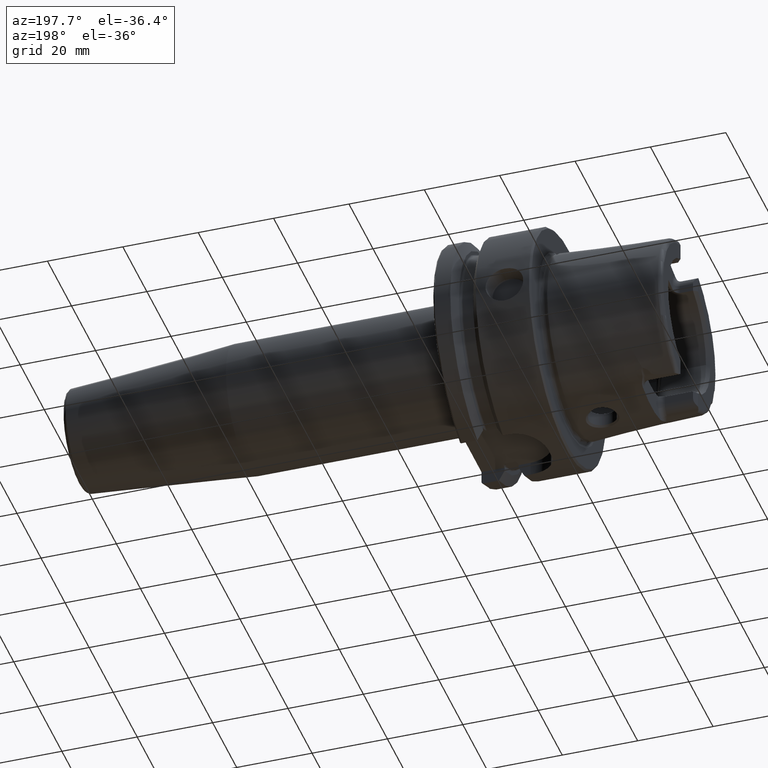
[diagram: clean part render]
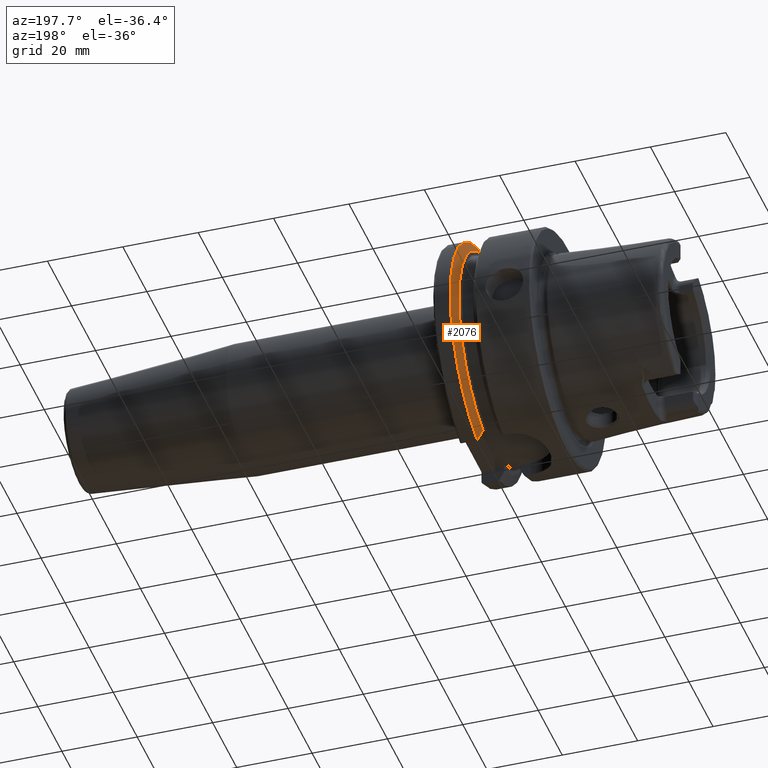
[diagram: same view with one face highlighted and labeled with its STEP entity id]
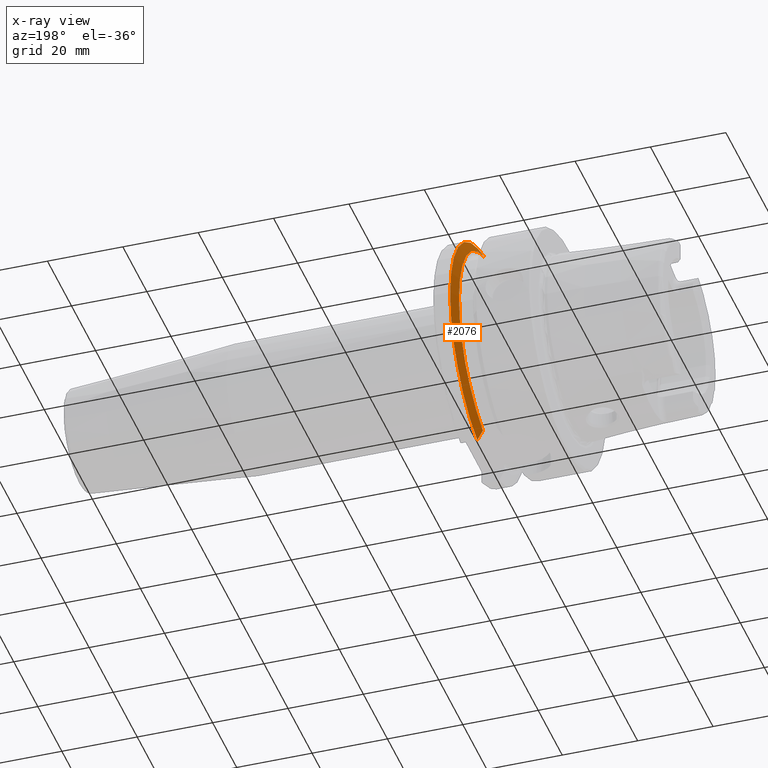
[diagram: x-ray of the same camera — body ghosted, the highlighted face saturated]
A machine part, auxiliary view. The second image highlights one B-rep face of the part: STEP entity #2076.
The next image is the same camera in x-ray: the body ghosted, the highlighted face saturated — about 0% of this face is hidden behind the body in this view.
In plain terms, the highlighted conical surface has half-angle 60 deg.
Its self-contained STEP definition (entity closure, byte-faithful):
#24=(
BOUNDED_CURVE()
B_SPLINE_CURVE(2,(#4059,#4060,#4061),.UNSPECIFIED.,.F.,.F.)
B_SPLINE_CURVE_WITH_KNOTS((3,3),(0.,0.311314369989023),.UNSPECIFIED.)
CURVE()
GEOMETRIC_REPRESENTATION_ITEM()
RATIONAL_B_SPLINE_CURVE((1.,1.00102053193238,1.))
REPRESENTATION_ITEM('')
);
#27=(
BOUNDED_CURVE()
B_SPLINE_CURVE(2,(#4256,#4257,#4258),.UNSPECIFIED.,.F.,.F.)
B_SPLINE_CURVE_WITH_KNOTS((3,3),(0.,0.308905667770379),.UNSPECIFIED.)
CURVE()
GEOMETRIC_REPRESENTATION_ITEM()
RATIONAL_B_SPLINE_CURVE((1.,1.00099999355179,1.))
REPRESENTATION_ITEM('')
);
#283=FACE_OUTER_BOUND('',#412,.T.);
#412=EDGE_LOOP('',(#1720,#1721,#1722,#1723));
#764=CIRCLE('',#2300,31.5);
#768=CIRCLE('',#2308,28.8975952641916);
#958=VERTEX_POINT('',#4056);
#959=VERTEX_POINT('',#4058);
#985=VERTEX_POINT('',#4240);
#988=VERTEX_POINT('',#4254);
#1215=EDGE_CURVE('',#959,#958,#24,.T.);
#1255=EDGE_CURVE('',#959,#985,#764,.T.);
#1262=EDGE_CURVE('',#958,#988,#768,.T.);
#1263=EDGE_CURVE('',#988,#985,#27,.T.);
#1720=ORIENTED_EDGE('',*,*,#1215,.T.);
#1721=ORIENTED_EDGE('',*,*,#1262,.T.);
#1722=ORIENTED_EDGE('',*,*,#1263,.T.);
#1723=ORIENTED_EDGE('',*,*,#1255,.F.);
#1998=CONICAL_SURFACE('',#2307,30.1987976320958,1.0471975511966);
#2076=ADVANCED_FACE('',(#283),#1998,.T.);
#2300=AXIS2_PLACEMENT_3D('',#4241,#2791,#2792);
#2307=AXIS2_PLACEMENT_3D('',#4253,#2808,#2809);
#2308=AXIS2_PLACEMENT_3D('',#4255,#2810,#2811);
#2791=DIRECTION('center_axis',(1.,0.,0.));
#2792=DIRECTION('ref_axis',(0.,0.,-1.));
#2808=DIRECTION('center_axis',(1.,0.,0.));
#2809=DIRECTION('ref_axis',(0.,1.,0.));
#2810=DIRECTION('center_axis',(1.,0.,0.));
#2811=DIRECTION('ref_axis',(0.,0.,-1.));
#4056=CARTESIAN_POINT('',(19.875,9.,-27.4603534582684));
#4058=CARTESIAN_POINT('',(21.3774990747593,9.,-30.1869176962472));
#4059=CARTESIAN_POINT('Ctrl Pts',(21.3774990747593,9.,-30.1869176962472));
#4060=CARTESIAN_POINT('Ctrl Pts',(20.5907174110267,9.,-28.7648946319029));
#4061=CARTESIAN_POINT('Ctrl Pts',(19.875,9.,-27.4603534582684));
#4240=CARTESIAN_POINT('',(21.3774990747593,8.,30.4671954731642));
#4241=CARTESIAN_POINT('Origin',(21.3774990747593,0.,0.));
#4253=CARTESIAN_POINT('Origin',(20.6262495373797,0.,0.));
#4254=CARTESIAN_POINT('',(19.875,8.,27.7681654426977));
#4255=CARTESIAN_POINT('Origin',(19.875,0.,0.));
#4256=CARTESIAN_POINT('Ctrl Pts',(19.875,8.,27.7681654426977));
#4257=CARTESIAN_POINT('Ctrl Pts',(20.5914314297926,8.,29.0595327079868));
#4258=CARTESIAN_POINT('Ctrl Pts',(21.3774990747593,8.,30.4671954731642));